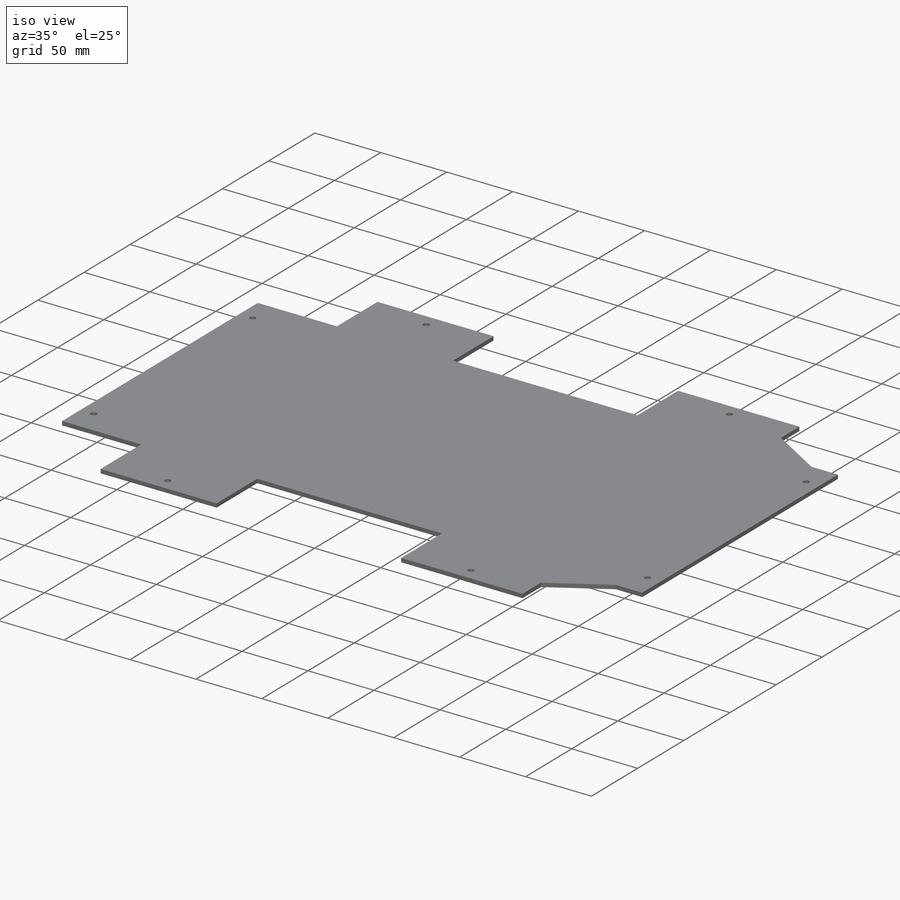
[diagram: iso view]
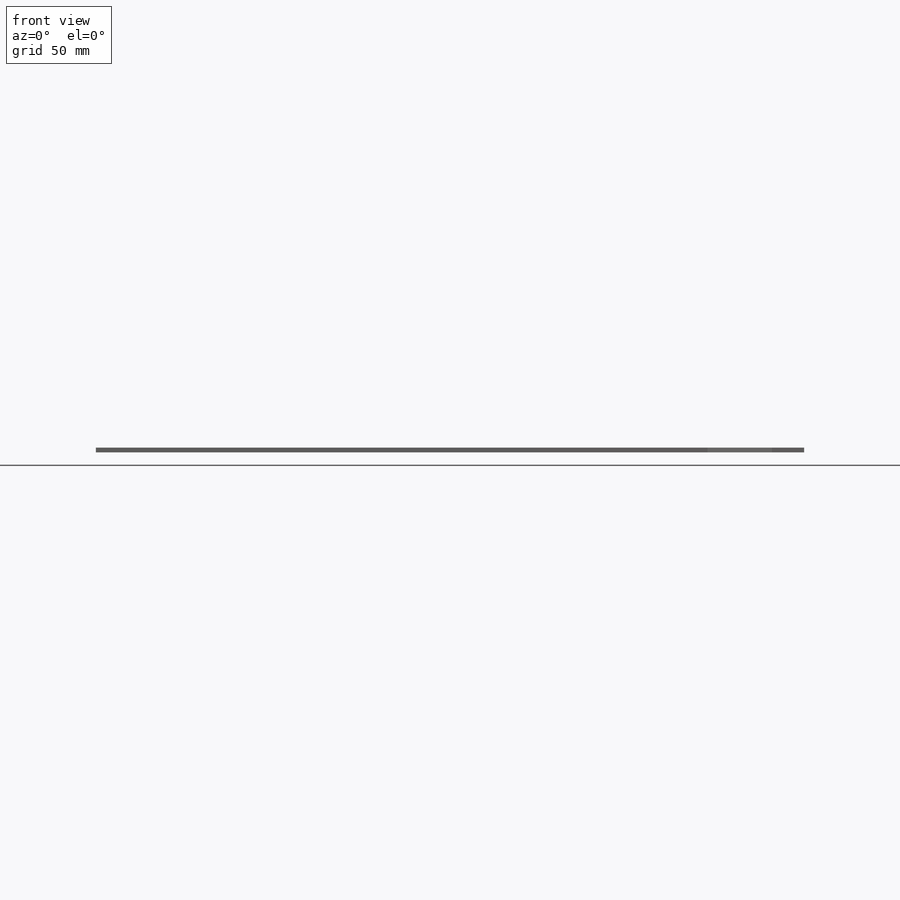
[diagram: front view]
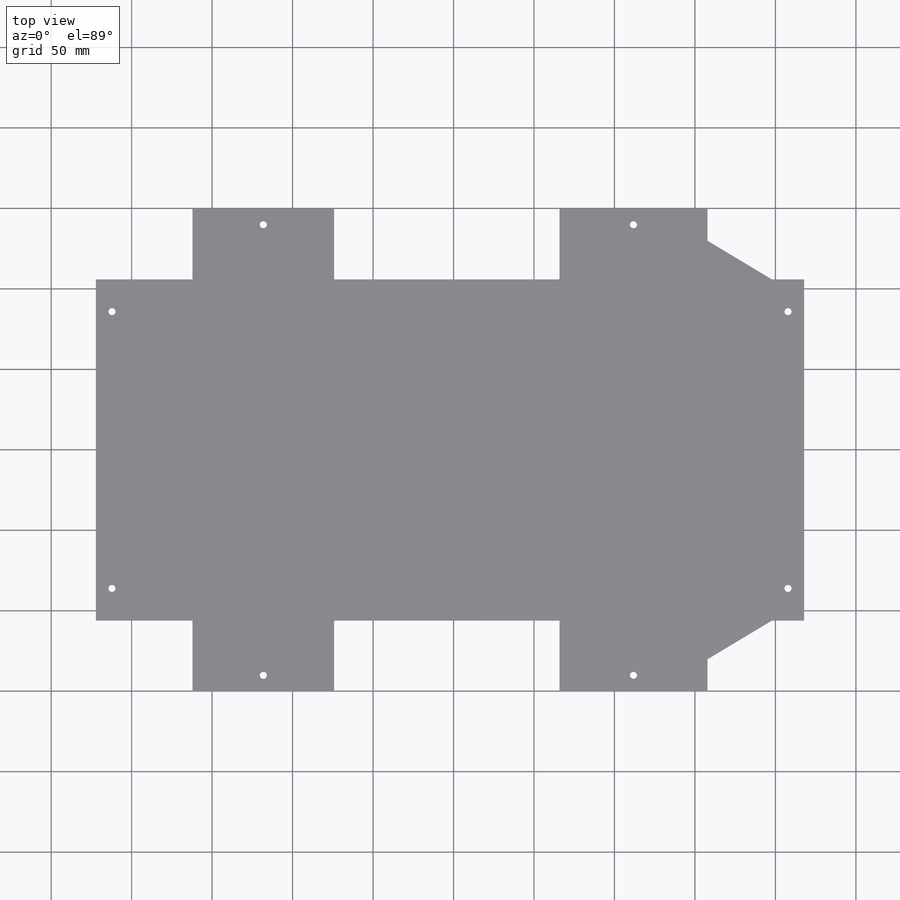
[diagram: top view]
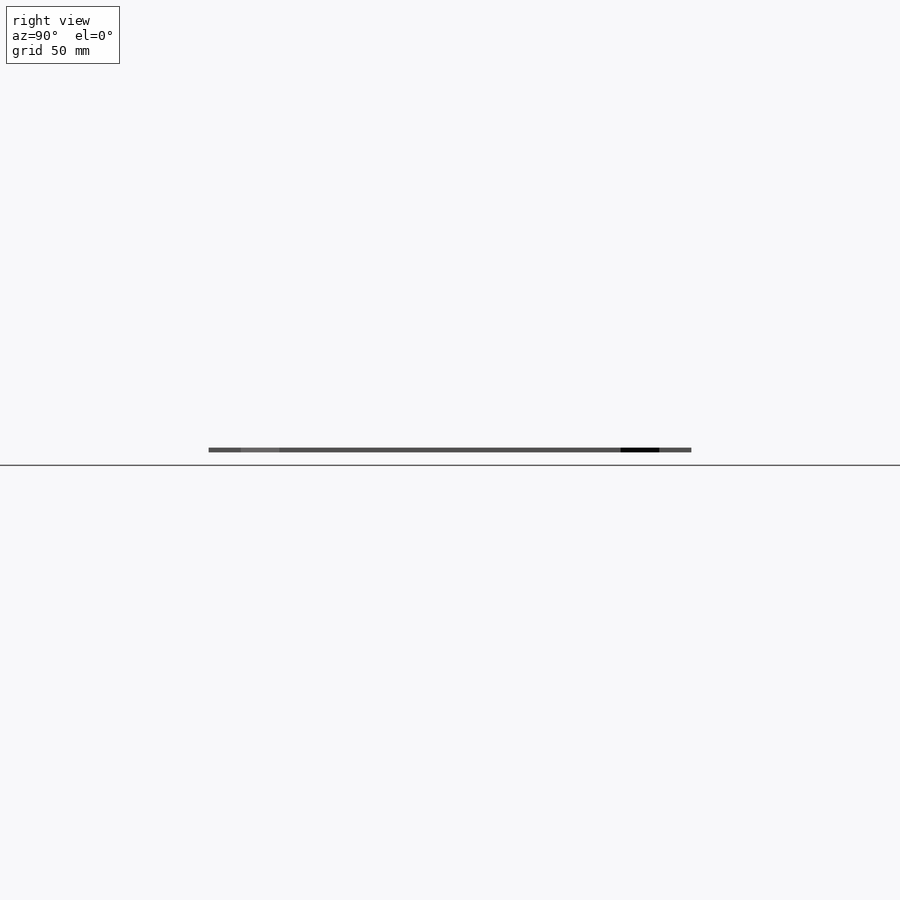
[diagram: right view]
SOLIDWORKS PART (.sldprt)
format: sldprt  version: not decoded by parser v0  size: 286,208 bytes
history: native  units: mm
features: sketch x4, plane x3, material x1, extrude x1, hole x1 (+9 scaffold rows collapsed)
feature tree (19):
  scaffold x9  (default folders/planes/origin — collapsed)
  material  "Matériau <non spécifié>"
  plane  "Plan de face"
  plane  "Plan de dessus"
  plane  "Plan de droite"
  sketch  "Esquisse4"  dims[c1.D1=60.0mm c1.D2=88.0mm c1.D3=140.0mm c1.D4=~91.999999mm c1.D5=~222.190316mm c1.D6=~211.999999mm c1.D7=20.0mm c1.D8=20.0mm c1.D9=~211.999999mm c1.D10=~211.999999mm c2.D9=~439.999999mm c2.D10=47.0mm]
  extrude  "Boss.-Extru.1"  Depth=3mm
  sketch  "Esquisse5"  dims[c1.D1=~211.999999mm c2.D1=~179.862707deg c3.D1=10.0mm c3.D2=10.0mm c3.D3=10.0mm c3.D4=~7.837482mm]
  hole  "Dégagement M41"  Diameter=4.4mm Depth=5mm
  sketch  "Esquisse7"  dims[c1.D1=~281.989476mm c1.D2=~409.358673mm c2.D1=10.0mm c2.D2=10.0mm c2.D3=10.0mm c2.D4=10.0mm c2.D5=20.0mm c2.D6=20.0mm c2.D7=20.0mm c2.D8=20.0mm c2.D9=~85.707106mm]
  sketch  "Esquisse6"  dims[hole-wizard template sketch: 47 standard entries collapsed; hole parameters kept: c15.Profondeur du perçage=5.0mm c15.D3=~14.816244mm c15.Angle de pointe=180.0deg]
decode coverage: 6 of 6 modeling features carry decoded parameters
note: ~ marks probable driven/reference dimensions
note: suppression state not decoded; provenance and decode notes live in map.json
